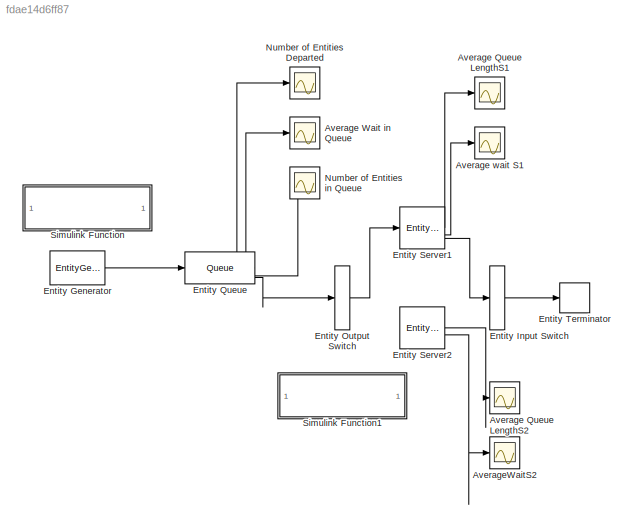
MODEL slx_fdae14d6ff87
KIND model
CONFIG AbsTol = auto
CONFIG EnableMultiTasking = off
CONFIG FixedStep = auto
CONFIG MaxStep = auto
CONFIG MinStep = auto
CONFIG RelTol = 1e-3
CONFIG SampleTimeConstraint = Unconstrained
CONFIG SolverName = VariableStepAuto
CONFIG StartTime = 0.0
CONFIG StopTime = 1000
BLOCK [Scope] Average Queue LengthS1
  Floating = off
  NumInputPorts = 1
  ScopeSpecificationString = Simulink.scopes.TimeScopeBlockCfg('CurrentConfiguration', extmgr.ConfigurationSet(extmgr.Configuration('Core','General UI',true),extmgr.Configuration('Core','Source UI',true),extmgr.Configuration('Sources','WiredSimulink',true,'DataLoggingVariableName','ScopeData4'),extmgr.Configuration('Visuals','Time Domain',true,'SerializedDisplays',{struct('MinYLimReal','-0.625','MaxYLimReal','5.625','YLabelRe...<+1508ch>
BLOCK [Scope] Average Queue LengthS2
  Floating = off
  NumInputPorts = 1
  ScopeSpecificationString = Simulink.scopes.TimeScopeBlockCfg('CurrentConfiguration', extmgr.ConfigurationSet(extmgr.Configuration('Core','General UI',true),extmgr.Configuration('Core','Source UI',true),extmgr.Configuration('Sources','WiredSimulink',true,'DataLoggingVariableName','ScopeData2'),extmgr.Configuration('Visuals','Time Domain',true,'SerializedDisplays',{struct('MinYLimReal','-0.625','MaxYLimReal','5.625','YLabelRe...<+1515ch>
BLOCK [Scope] Average Wait in Queue
  Floating = off
  NumInputPorts = 1
  ScopeSpecificationString = Simulink.scopes.TimeScopeBlockCfg('CurrentConfiguration', extmgr.ConfigurationSet(extmgr.Configuration('Core','General UI',true),extmgr.Configuration('Core','Source UI',true),extmgr.Configuration('Sources','WiredSimulink',true),extmgr.Configuration('Visuals','Time Domain',true,'SerializedDisplays',{struct('MinYLimReal','-1.00000','MaxYLimReal','1.00000','YLabelReal','','MinYLimMag','0.00000','MaxY...<+1485ch>
BLOCK [Scope] Average wait S1
  Floating = off
  NumInputPorts = 1
  ScopeSpecificationString = Simulink.scopes.TimeScopeBlockCfg('CurrentConfiguration', extmgr.ConfigurationSet(extmgr.Configuration('Core','General UI',true),extmgr.Configuration('Core','Source UI',true),extmgr.Configuration('Sources','WiredSimulink',true,'DataLoggingVariableName','ScopeData1'),extmgr.Configuration('Visuals','Time Domain',true,'SerializedDisplays',{struct('MinYLimReal','0.49287','MaxYLimReal','1.31105','YLabe...<+1520ch>
BLOCK [Scope] AverageWaitS2
  Floating = off
  NumInputPorts = 1
  ScopeSpecificationString = Simulink.scopes.TimeScopeBlockCfg('CurrentConfiguration', extmgr.ConfigurationSet(extmgr.Configuration('Core','General UI',true),extmgr.Configuration('Core','Source UI',true),extmgr.Configuration('Sources','WiredSimulink',true,'DataLoggingVariableName','ScopeData3'),extmgr.Configuration('Visuals','Time Domain',true,'SerializedDisplays',{struct('MinYLimReal','0.77871','MaxYLimReal','1.86463','YLabe...<+1524ch>
BLOCK [EntityGenerator] Entity Generator
  EntityType = Structured
  EntityTypeName = Entity
  IntergenerationTimeAction = dt = arrivalProcess();
  OutputPortMap = o3
  OutputPortMessageModes = m
  TimeSource = MATLAB action
BLOCK [EntityInputSwitch] Entity Input Switch
  InputPortMap = u1
  InputPortMessageModes = m
  NumberInputPorts = 1
  OutputPortMap = o0
  OutputPortMessageModes = m
BLOCK [EntityOutputSwitch] Entity Output Switch
  InitialPortSelection = 2
  InputPortMap = u1
  InputPortMessageModes = m
  NumberOutputPorts = 1
  OutputPortMap = o0
  OutputPortMessageModes = m
  SwitchAttributeName = Attribute1
  SwitchingCriterion = Equiprobable
BLOCK [Queue] Entity Queue
  AverageQueueLength = on
  AverageWait = on
  Capacity = 1
  InputPortMap = u0
  InputPortMessageModes = m
  NameLocation = left
  NumberEntitiesDeparted = on
  OutputPortMap = o0,o2,o3,o5
  OutputPortMessageModes = n,n,n,m
BLOCK [EntityServer] Entity Server1
  AverageWait = on
  InputPortMap = u2
  InputPortMessageModes = m
  NumberEntitiesInBlock = on
  OutputPortMap = o1,o4,o9
  OutputPortMessageModes = n,n,m
  ServiceTimeAction = dt = serviceProcess();
  ServiceTimeSource = MATLAB action
BLOCK [EntityServer] Entity Server2
  AverageWait = on
  InputPortMap = u2
  InputPortMessageModes = m
  NumberEntitiesInBlock = on
  OutputPortMap = o1,o4,o9
  OutputPortMessageModes = n,n,m
  ServiceTimeAction = dt = serviceProcess();
  ServiceTimeSource = MATLAB action
BLOCK [EntityTerminator] Entity Terminator
  InputPortMap = u0
  InputPortMessageModes = m
BLOCK [Scope] Number of Entities Departed
  Floating = off
  NumInputPorts = 1
  ScopeSpecificationString = Simulink.scopes.TimeScopeBlockCfg('CurrentConfiguration', extmgr.ConfigurationSet(extmgr.Configuration('Core','General UI',true),extmgr.Configuration('Core','Source UI',true),extmgr.Configuration('Sources','WiredSimulink',true,'DataLoggingVariableName','ScopeData1'),extmgr.Configuration('Visuals','Time Domain',true,'SerializedDisplays',{struct('MinYLimReal','-109.25','MaxYLimReal','993.25','YLabel...<+1516ch>
BLOCK [Scope] Number of Entities in Queue
  Floating = off
  NumInputPorts = 1
  ScopeSpecificationString = Simulink.scopes.TimeScopeBlockCfg('CurrentConfiguration', extmgr.ConfigurationSet(extmgr.Configuration('Core','General UI',true),extmgr.Configuration('Core','Source UI',true),extmgr.Configuration('Sources','WiredSimulink',true,'DataLoggingVariableName','ScopeData1'),extmgr.Configuration('Visuals','Time Domain',true,'SerializedDisplays',{struct('MinYLimReal','-1.00000','MaxYLimReal','1.00000','YLab...<+1525ch>
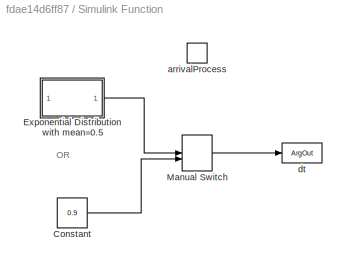
BLOCK [SubSystem] Simulink Function
  TreatAsAtomicUnit = on
BLOCK [Constant] Simulink Function/Constant
  Value = 0.9
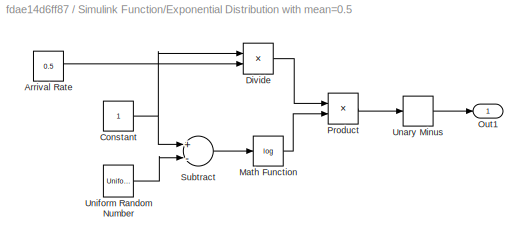
BLOCK [SubSystem] Simulink Function/Exponential Distribution with mean=0.5
BLOCK [Constant] Simulink Function/Exponential Distribution with mean=0.5/Arrival Rate
  Value = 0.5
BLOCK [Constant] Simulink Function/Exponential Distribution with mean=0.5/Constant
BLOCK [Product] Simulink Function/Exponential Distribution with mean=0.5/Divide
  Inputs = */
BLOCK [Math] Simulink Function/Exponential Distribution with mean=0.5/Math Function
  Operator = log
BLOCK [Outport] Simulink Function/Exponential Distribution with mean=0.5/Out1
BLOCK [Product] Simulink Function/Exponential Distribution with mean=0.5/Product
BLOCK [Sum] Simulink Function/Exponential Distribution with mean=0.5/Subtract
  Inputs = +-
BLOCK [UnaryMinus] Simulink Function/Exponential Distribution with mean=0.5/Unary Minus
BLOCK [UniformRandomNumber] Simulink Function/Exponential Distribution with mean=0.5/Uniform Random Number
  Minimum = 0
  Seed = 12345
BLOCK [ManualSwitch] Simulink Function/Manual Switch
BLOCK [TriggerPort] Simulink Function/arrivalProcess
  FunctionName = arrivalProcess
  IsSimulinkFunction = on
  StatesWhenEnabling = held
  TriggerType = function-call
  VariantControl = Variant
BLOCK [ArgOut] Simulink Function/dt
  ArgumentName = dt
  DisableCoverage = on
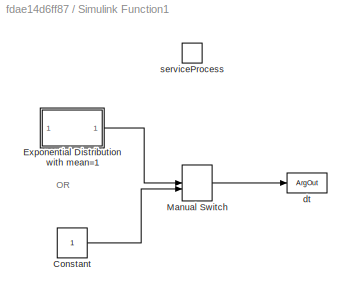
BLOCK [SubSystem] Simulink Function1
  TreatAsAtomicUnit = on
BLOCK [Constant] Simulink Function1/Constant
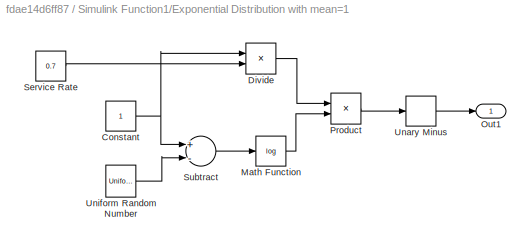
BLOCK [SubSystem] Simulink Function1/Exponential Distribution with mean=1
BLOCK [Constant] Simulink Function1/Exponential Distribution with mean=1/Constant
BLOCK [Product] Simulink Function1/Exponential Distribution with mean=1/Divide
  Inputs = */
BLOCK [Math] Simulink Function1/Exponential Distribution with mean=1/Math Function
  Operator = log
BLOCK [Outport] Simulink Function1/Exponential Distribution with mean=1/Out1
BLOCK [Product] Simulink Function1/Exponential Distribution with mean=1/Product
BLOCK [Constant] Simulink Function1/Exponential Distribution with mean=1/Service Rate
  Value = 0.7
BLOCK [Sum] Simulink Function1/Exponential Distribution with mean=1/Subtract
  Inputs = +-
BLOCK [UnaryMinus] Simulink Function1/Exponential Distribution with mean=1/Unary Minus
BLOCK [UniformRandomNumber] Simulink Function1/Exponential Distribution with mean=1/Uniform Random Number
  Minimum = 0
  Seed = 98765
BLOCK [ManualSwitch] Simulink Function1/Manual Switch
BLOCK [ArgOut] Simulink Function1/dt
  ArgumentName = dt
  DisableCoverage = on
BLOCK [TriggerPort] Simulink Function1/serviceProcess
  FunctionName = serviceProcess
  IsSimulinkFunction = on
  StatesWhenEnabling = held
  TriggerType = function-call
  VariantControl = Variant
ANNOTATION Simulink Function: OR
ANNOTATION Simulink Function1: OR
LINE Entity Generator:1 -> Entity Queue:1
LINE Entity Input Switch:1 -> Entity Terminator:1
LINE Entity Output Switch:1 -> Entity Server1:1
LINE Entity Queue:1 -> Number of Entities Departed:1
LINE Entity Queue:2 -> Average Wait in Queue:1
LINE Entity Queue:3 -> Number of Entities in Queue:1
LINE Entity Queue:4 -> Entity Output Switch:1
LINE Entity Server1:1 -> Average Queue LengthS1:1
LINE Entity Server1:2 -> Average wait S1:1
LINE Entity Server1:3 -> Entity Input Switch:1
LINE Entity Server2:1 -> Average Queue LengthS2:1
LINE Entity Server2:2 -> AverageWaitS2:1
LINE Simulink Function/Constant:1 -> Simulink Function/Manual Switch:2
LINE Simulink Function/Exponential Distribution with mean=0.5/Arrival Rate:1 -> Simulink Function/Exponential Distribution with mean=0.5/Divide:2
NET Simulink Function/Exponential Distribution with mean=0.5/Constant:1 -> Simulink Function/Exponential Distribution with mean=0.5/Divide:1, Simulink Function/Exponential Distribution with mean=0.5/Subtract:1
LINE Simulink Function/Exponential Distribution with mean=0.5/Divide:1 -> Simulink Function/Exponential Distribution with mean=0.5/Product:1
LINE Simulink Function/Exponential Distribution with mean=0.5/Math Function:1 -> Simulink Function/Exponential Distribution with mean=0.5/Product:2
LINE Simulink Function/Exponential Distribution with mean=0.5/Product:1 -> Simulink Function/Exponential Distribution with mean=0.5/Unary Minus:1
LINE Simulink Function/Exponential Distribution with mean=0.5/Subtract:1 -> Simulink Function/Exponential Distribution with mean=0.5/Math Function:1
LINE Simulink Function/Exponential Distribution with mean=0.5/Unary Minus:1 -> Simulink Function/Exponential Distribution with mean=0.5/Out1:1
LINE Simulink Function/Exponential Distribution with mean=0.5/Uniform Random Number:1 -> Simulink Function/Exponential Distribution with mean=0.5/Subtract:2
LINE Simulink Function/Exponential Distribution with mean=0.5:1 -> Simulink Function/Manual Switch:1
LINE Simulink Function/Manual Switch:1 -> Simulink Function/dt:1
LINE Simulink Function1/Constant:1 -> Simulink Function1/Manual Switch:2
NET Simulink Function1/Exponential Distribution with mean=1/Constant:1 -> Simulink Function1/Exponential Distribution with mean=1/Divide:1, Simulink Function1/Exponential Distribution with mean=1/Subtract:1
LINE Simulink Function1/Exponential Distribution with mean=1/Divide:1 -> Simulink Function1/Exponential Distribution with mean=1/Product:1
LINE Simulink Function1/Exponential Distribution with mean=1/Math Function:1 -> Simulink Function1/Exponential Distribution with mean=1/Product:2
LINE Simulink Function1/Exponential Distribution with mean=1/Product:1 -> Simulink Function1/Exponential Distribution with mean=1/Unary Minus:1
LINE Simulink Function1/Exponential Distribution with mean=1/Service Rate:1 -> Simulink Function1/Exponential Distribution with mean=1/Divide:2
LINE Simulink Function1/Exponential Distribution with mean=1/Subtract:1 -> Simulink Function1/Exponential Distribution with mean=1/Math Function:1
LINE Simulink Function1/Exponential Distribution with mean=1/Unary Minus:1 -> Simulink Function1/Exponential Distribution with mean=1/Out1:1
LINE Simulink Function1/Exponential Distribution with mean=1/Uniform Random Number:1 -> Simulink Function1/Exponential Distribution with mean=1/Subtract:2
LINE Simulink Function1/Exponential Distribution with mean=1:1 -> Simulink Function1/Manual Switch:1
LINE Simulink Function1/Manual Switch:1 -> Simulink Function1/dt:1
note: NET lines group one-source signal fan-out (src -> all destinations, sorted); 1:1 wires keep LINE
